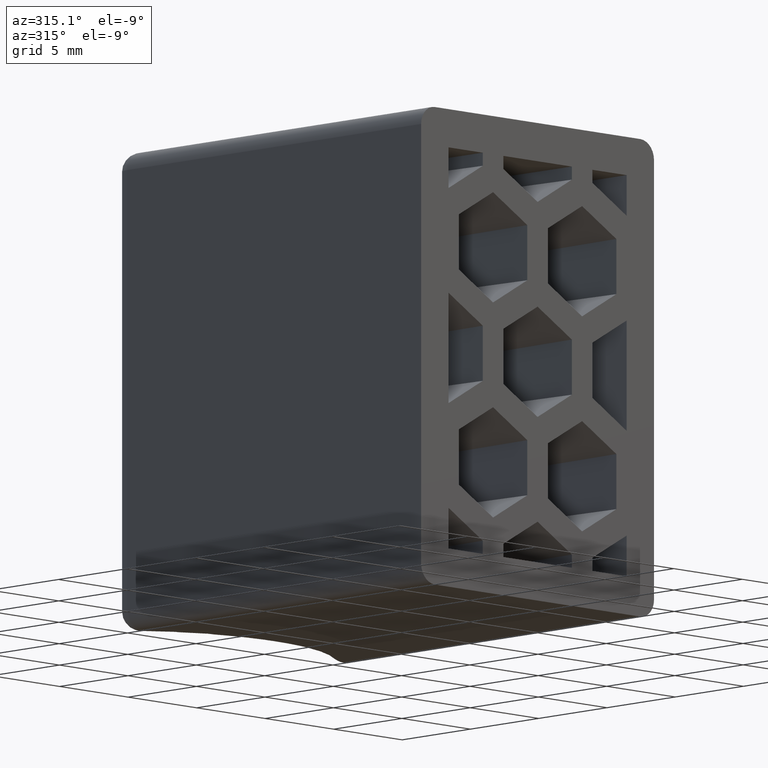
[diagram: clean part render]
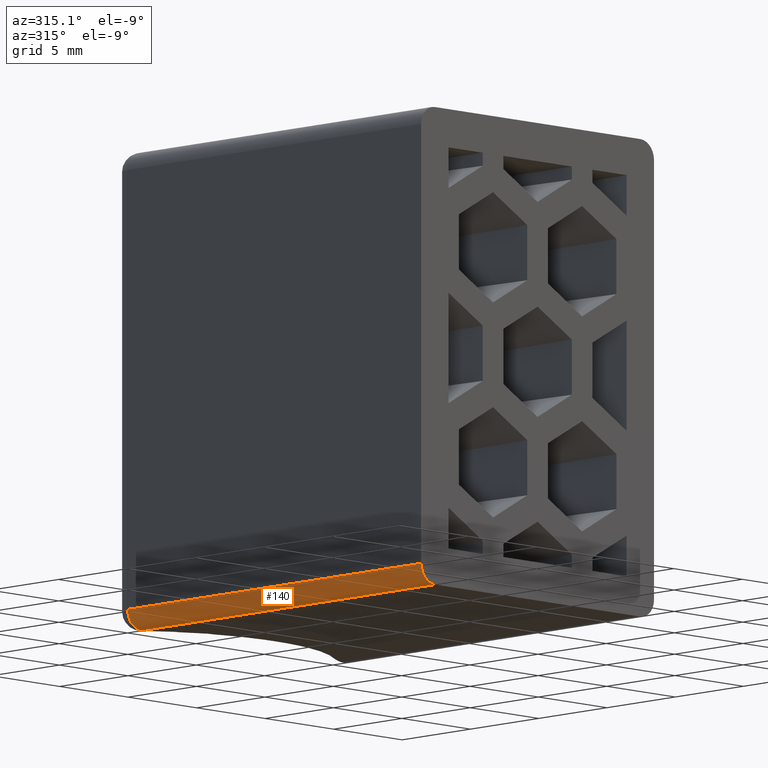
[diagram: same view with one face highlighted and labeled with its STEP entity id]
A machine part, auxiliary view. The second image highlights one B-rep face of the part: STEP entity #140.
In plain terms, the highlighted cylindrical surface (edge-blend (fillet) strip) has radius 1 mm, axis along (0, 1, 0).
Its self-contained STEP definition (entity closure, byte-faithful):
#140 = ADVANCED_FACE( '', ( #364 ), #365, .T. );
#364 = FACE_OUTER_BOUND( '', #662, .T. );
#365 = CYLINDRICAL_SURFACE( '', #663, 1.00000000000000 );
#662 = EDGE_LOOP( '', ( #1371, #1372, #1373, #1374 ) );
#663 = AXIS2_PLACEMENT_3D( '', #1375, #1376, #1377 );
#1371 = ORIENTED_EDGE( '', *, *, #2060, .F. );
#1372 = ORIENTED_EDGE( '', *, *, #2030, .T. );
#1373 = ORIENTED_EDGE( '', *, *, #2034, .F. );
#1374 = ORIENTED_EDGE( '', *, *, #2008, .F. );
#1375 = CARTESIAN_POINT( '', ( -7.50000000000000, 22.5000000000000, -11.5000000000000 ) );
#1376 = DIRECTION( '', ( 6.07153216591882E-017, 1.00000000000000, 0.000000000000000 ) );
#1377 = DIRECTION( '', ( 1.00000000000000, -6.07153216591882E-017, 0.000000000000000 ) );
#2008 = EDGE_CURVE( '', #2446, #2436, #2448, .T. );
#2030 = EDGE_CURVE( '', #2478, #2481, #2483, .T. );
#2034 = EDGE_CURVE( '', #2436, #2481, #2489, .F. );
#2060 = EDGE_CURVE( '', #2478, #2446, #2531, .T. );
#2436 = VERTEX_POINT( '', #3083 );
#2446 = VERTEX_POINT( '', #3095 );
#2448 = CIRCLE( '', #3098, 0.999999999999987 );
#2478 = VERTEX_POINT( '', #3143 );
#2481 = VERTEX_POINT( '', #3147 );
#2483 = CIRCLE( '', #3149, 1.00000000000000 );
#2489 = LINE( '', #3157, #3158 );
#2531 = LINE( '', #3210, #3211 );
#3083 = CARTESIAN_POINT( '', ( -7.50000000000000, 0.000000000000000, -12.5000000000000 ) );
#3095 = CARTESIAN_POINT( '', ( -8.50000000000000, 0.000000000000000, -11.5000000000000 ) );
#3098 = AXIS2_PLACEMENT_3D( '', #3722, #3723, #3724 );
#3143 = CARTESIAN_POINT( '', ( -8.50000000000000, 21.5000000000000, -11.5000000000000 ) );
#3147 = CARTESIAN_POINT( '', ( -7.50000000000000, 21.5000000000000, -12.5000000000000 ) );
#3149 = AXIS2_PLACEMENT_3D( '', #3756, #3757, #3758 );
#3157 = CARTESIAN_POINT( '', ( -7.50000000000000, 31.3600000000000, -12.5000000000000 ) );
#3158 = VECTOR( '', #3764, 1000.00000000000 );
#3210 = CARTESIAN_POINT( '', ( -8.50000000000000, 22.5000000000000, -11.5000000000000 ) );
#3211 = VECTOR( '', #3820, 1000.00000000000 );
#3722 = CARTESIAN_POINT( '', ( -7.50000000000000, 0.000000000000000, -11.5000000000000 ) );
#3723 = DIRECTION( '', ( 0.000000000000000, -1.00000000000000, 0.000000000000000 ) );
#3724 = DIRECTION( '', ( 0.000000000000000, 0.000000000000000, -1.00000000000000 ) );
#3756 = CARTESIAN_POINT( '', ( -7.50000000000000, 21.5000000000000, -11.5000000000000 ) );
#3757 = DIRECTION( '', ( -6.07153216591882E-017, -1.00000000000000, 0.000000000000000 ) );
#3758 = DIRECTION( '', ( 1.00000000000000, -6.07153216591882E-017, 0.000000000000000 ) );
#3764 = DIRECTION( '', ( -6.07153216591882E-017, -1.00000000000000, 0.000000000000000 ) );
#3820 = DIRECTION( '', ( -6.07153216591882E-017, -1.00000000000000, 0.000000000000000 ) );